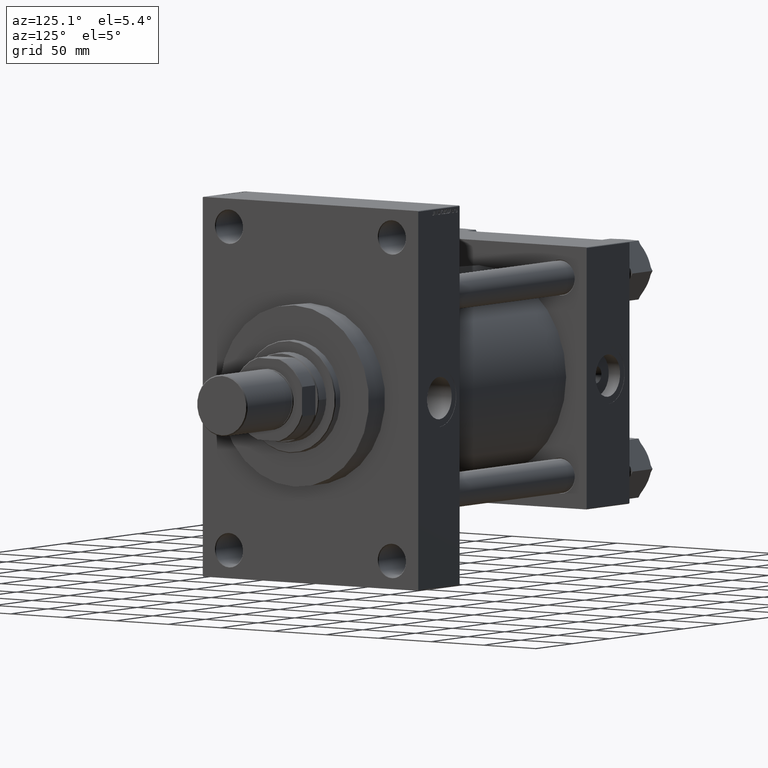
[diagram: clean part render]
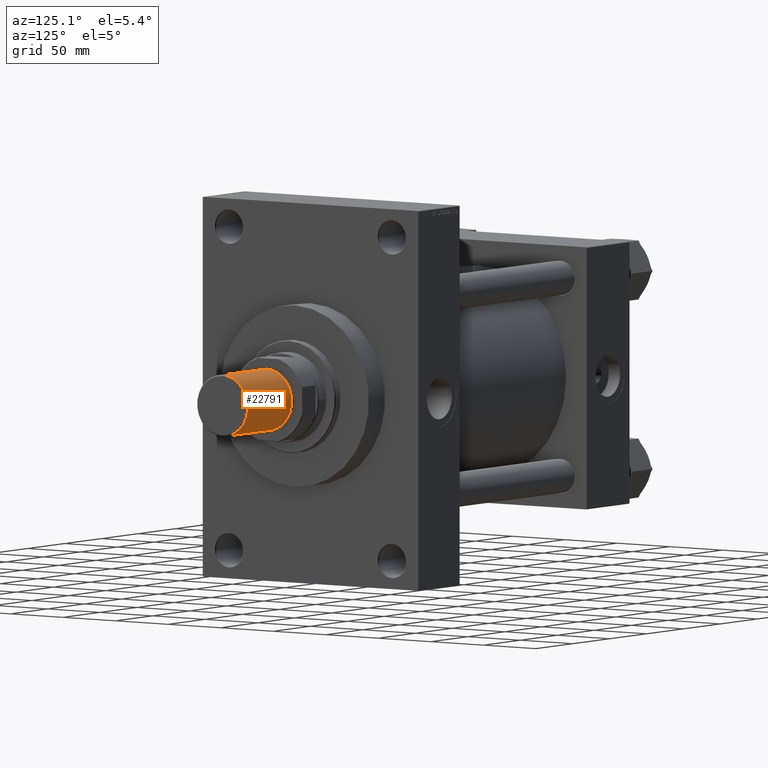
[diagram: same view with one face highlighted and labeled with its STEP entity id]
A machine part, auxiliary view. The second image highlights one B-rep face of the part: STEP entity #22791.
In plain terms, the highlighted cylindrical surface (edge-blend (fillet) strip) has radius 24 mm, axis along (1, -0, -0).
Its self-contained STEP definition (entity closure, byte-faithful):
#1101 = VERTEX_POINT ( 'NONE', #39690 ) ;
#1429 = CIRCLE ( 'NONE', #43450, 24.00000000000000355 ) ;
#2203 = CARTESIAN_POINT ( 'NONE',  ( 0.000000000000000000, 0.000000000000000000, 60.50000000000000000 ) ) ;
#2437 = DIRECTION ( 'NONE',  ( -1.000000000000000000, 0.000000000000000000, 0.000000000000000000 ) ) ;
#4676 = CARTESIAN_POINT ( 'NONE',  ( -24.00000000000000355, 0.000000000000000000, 60.50000000000000000 ) ) ;
#6803 = VECTOR ( 'NONE', #38680, 1000.000000000000000 ) ;
#7582 = DIRECTION ( 'NONE',  ( -0.000000000000000000, -0.000000000000000000, -1.000000000000000000 ) ) ;
#8794 = ORIENTED_EDGE ( 'NONE', *, *, #35231, .F. ) ;
#12326 = CIRCLE ( 'NONE', #16961, 24.00000000000000355 ) ;
#13568 = AXIS2_PLACEMENT_3D ( 'NONE', #13643, #42872, #2437 ) ;
#13643 = CARTESIAN_POINT ( 'NONE',  ( 0.000000000000000000, 0.000000000000000000, 60.50000000000000000 ) ) ;
#16828 = ORIENTED_EDGE ( 'NONE', *, *, #17260, .T. ) ;
#16961 = AXIS2_PLACEMENT_3D ( 'NONE', #2203, #17057, #31886 ) ;
#17057 = DIRECTION ( 'NONE',  ( 0.000000000000000000, 0.000000000000000000, 1.000000000000000000 ) ) ;
#17260 = EDGE_CURVE ( 'NONE', #1101, #33779, #40949, .T. ) ;
#17648 = CARTESIAN_POINT ( 'NONE',  ( 0.000000000000000000, 0.000000000000000000, 0.8000000000000020428 ) ) ;
#21057 = DIRECTION ( 'NONE',  ( -0.000000000000000000, -0.000000000000000000, 1.000000000000000000 ) ) ;
#22791 = ADVANCED_FACE ( 'NONE', ( #46999 ), #24113, .T. ) ;
#23592 = CARTESIAN_POINT ( 'NONE',  ( -24.00000000000000355, 0.000000000000000000, 60.50000000000000000 ) ) ;
#24113 = CYLINDRICAL_SURFACE ( 'NONE', #13568, 24.00000000000000355 ) ;
#31870 = VERTEX_POINT ( 'NONE', #33945 ) ;
#31886 = DIRECTION ( 'NONE',  ( 1.000000000000000000, 0.000000000000000000, 0.000000000000000000 ) ) ;
#33368 = ORIENTED_EDGE ( 'NONE', *, *, #35576, .T. ) ;
#33779 = VERTEX_POINT ( 'NONE', #41013 ) ;
#33945 = CARTESIAN_POINT ( 'NONE',  ( -24.00000000000000355, 0.000000000000000000, 0.8000000000000020428 ) ) ;
#34033 = EDGE_CURVE ( 'NONE', #42508, #31870, #34533, .T. ) ;
#34533 = LINE ( 'NONE', #23592, #6803 ) ;
#35231 = EDGE_CURVE ( 'NONE', #1101, #42508, #12326, .T. ) ;
#35576 = EDGE_CURVE ( 'NONE', #33779, #31870, #1429, .T. ) ;
#35890 = DIRECTION ( 'NONE',  ( 1.000000000000000000, 0.000000000000000000, 0.000000000000000000 ) ) ;
#36906 = EDGE_LOOP ( 'NONE', ( #8794, #16828, #33368, #47762 ) ) ;
#37507 = CARTESIAN_POINT ( 'NONE',  ( 24.00000000000000355, 2.939152317953648289E-15, 60.50000000000000000 ) ) ;
#38680 = DIRECTION ( 'NONE',  ( -0.000000000000000000, -0.000000000000000000, -1.000000000000000000 ) ) ;
#39077 = VECTOR ( 'NONE', #7582, 1000.000000000000000 ) ;
#39690 = CARTESIAN_POINT ( 'NONE',  ( 24.00000000000000355, 2.939152317953648289E-15, 60.50000000000000000 ) ) ;
#40949 = LINE ( 'NONE', #37507, #39077 ) ;
#41013 = CARTESIAN_POINT ( 'NONE',  ( 24.00000000000000355, 2.939152317953648289E-15, 0.8000000000000020428 ) ) ;
#42508 = VERTEX_POINT ( 'NONE', #4676 ) ;
#42872 = DIRECTION ( 'NONE',  ( -0.000000000000000000, -0.000000000000000000, -1.000000000000000000 ) ) ;
#43450 = AXIS2_PLACEMENT_3D ( 'NONE', #17648, #21057, #35890 ) ;
#46999 = FACE_OUTER_BOUND ( 'NONE', #36906, .T. ) ;
#47762 = ORIENTED_EDGE ( 'NONE', *, *, #34033, .F. ) ;